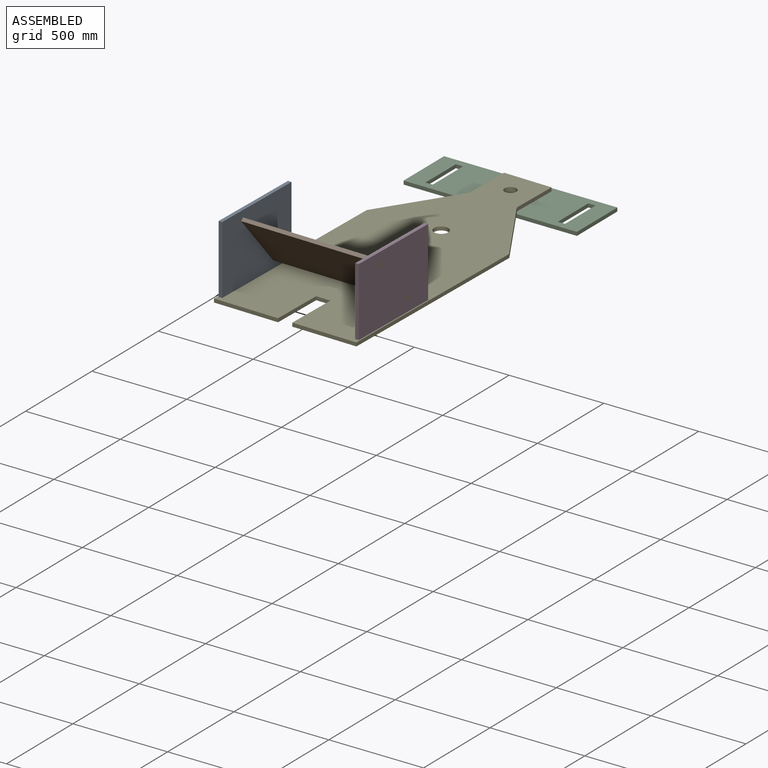
[diagram: assembled view]
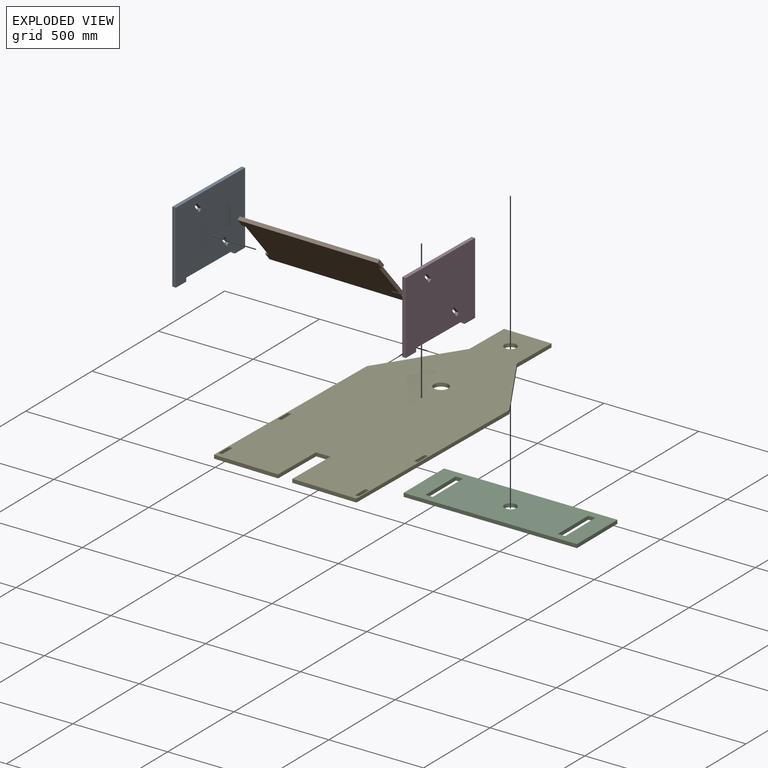
[diagram: exploded view]
GUIDED TOUR — MATED ASSEMBLY (Onshape document ca8d69a064440465adace408, AutoMate assembly ca8d69a064440465adace408_9f8851edc3aa5ce21e2790a8_0d32fe800d2b75ae77bd9095_default)

This assembly has 5 components, labeled P0..P4 below (a component is one placed occurrence of a part; the same part can appear more than once), held together by 4 mates. A mate is a constraint between two components; its type names the relative motion it leaves free:
  FASTENED — locks the two components together rigidly (no relative motion),
  REVOLUTE — leaves rotation about the listed axis free (a hinge).
Axis/direction vectors are unit vectors and 'through' points are millimeter coordinates, both in the assembly's world frame.

MATES
  1. FASTENED "Fastened 1": P3 <-> P4, direction (1.000, -0.020, 0.000) through (-311.57, -1307.19, -744.85) mm
  2. REVOLUTE "Revolute 1": P2 <-> P4, axis (0.000, 0.000, 1.000) through (-664.42, -182.40, -744.86) mm
  3. FASTENED "Fastened 3": P1 <-> P3, direction (-0.015, -0.761, -0.649) through (-318.87, -1676.63, -411.55) mm
  4. FASTENED "Fastened 2": P0 <-> P4, direction (-1.000, 0.020, 0.000) through (-1060.72, -1292.40, -744.88) mm

ASSEMBLY ORDER
  1. P1 — the base component [order verified]
  2. P0 [order verified]
  3. P3 [order verified]
  4. P4 [order verified]
  5. P2 [order verified]
Order-tag legend:
  [order verified] — this step's position reverses a verified removal order: the component was checked to insert without passing through the ones already placed.

Of the 5 components, 5 carry the full construction recipe — the FeatureScript program that regenerates the part's solid from scratch; the rest are supplied as boundary geometry only.
Each toured component is shown spotlighted twice — in the assembled view, then in the exploded view, where a leader line traces a displaced component back to its assembled socket (saturated green if recipe-attached, orange if geometry-only; every other component desaturated gray) — followed by its recipe or geometry summary and the mates that hold it.
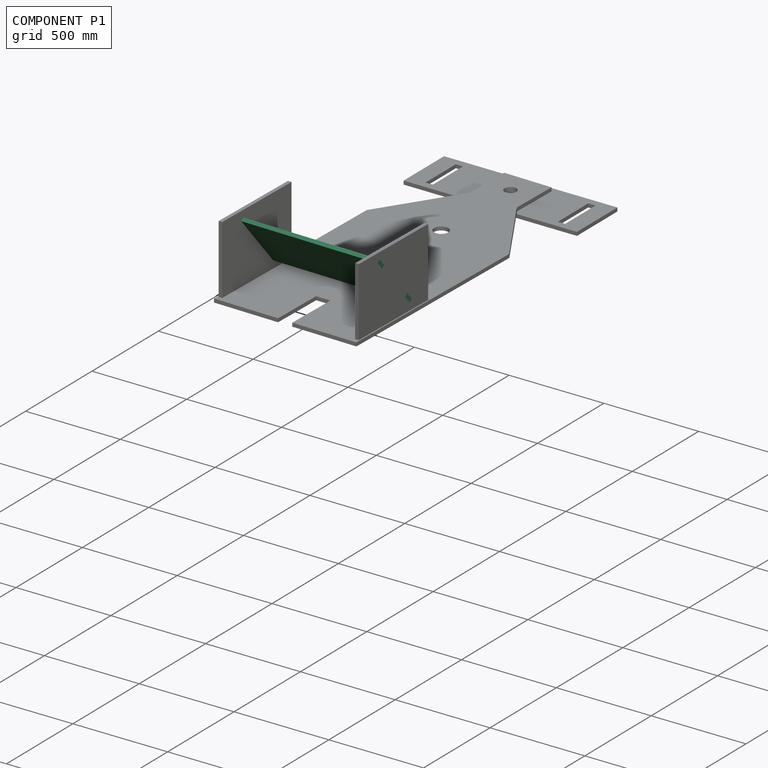
[diagram: component P1 — assembled]
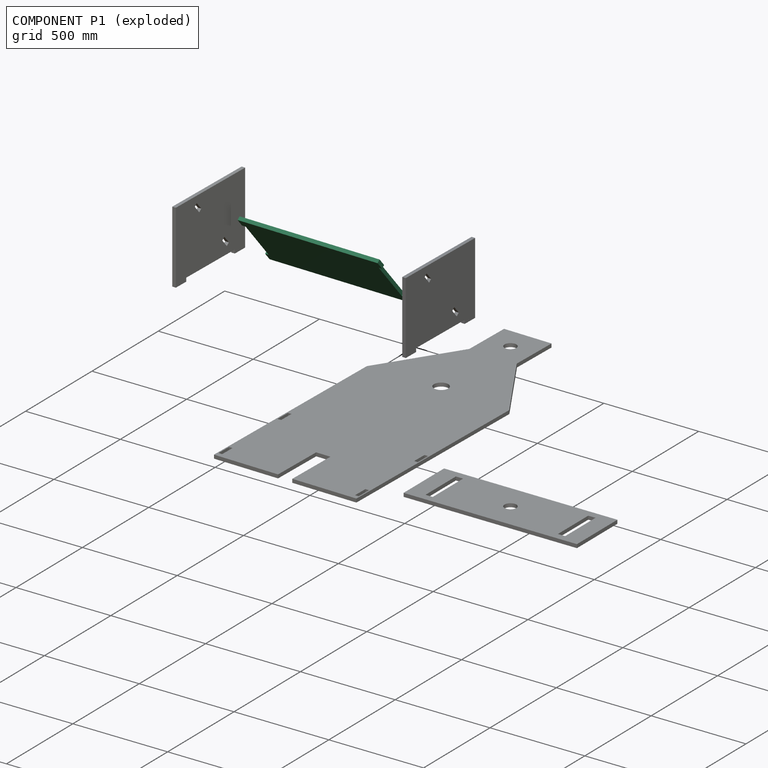
[diagram: component P1 — exploded]
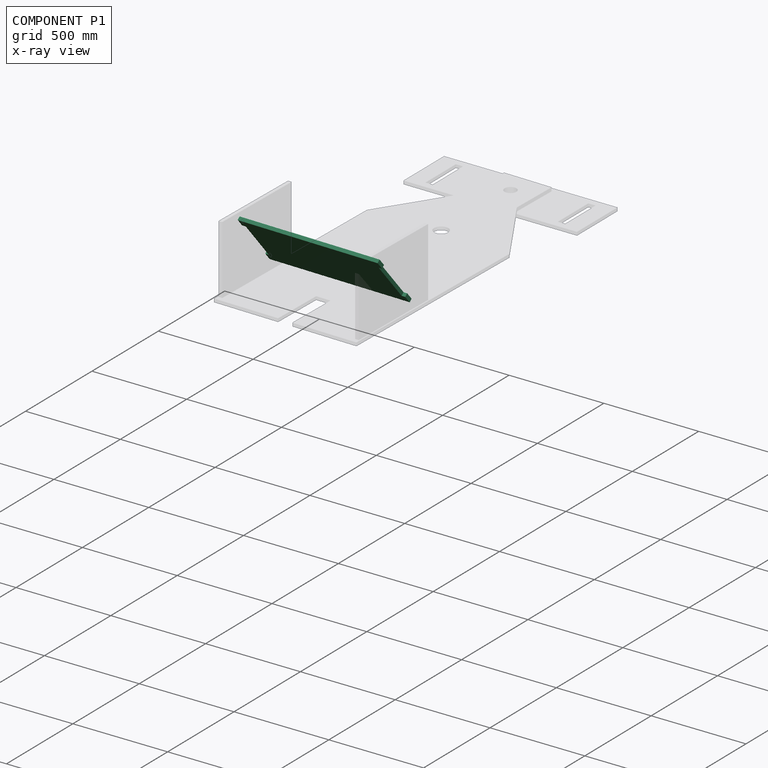
[diagram: component P1 — x-ray view]
COMPONENT P1 — recipe-attached (CADFS 00489166, mesh-verified: the recipe's output STEP matches this component's geometry to below the mesh-comparison resolution (tessellation chordal tolerance ~1.25 mm)).
Held by: FASTENED mate "Fastened 3" to P3.
Construction recipe (FeatureScript — the CAD program that rebuilds this solid; sketch coordinates are in the units given by the * unit suffixes, e.g. mm):

FeatureScript 1511;
import(path : "onshape/std/geometry.fs", version : "1511.0");
import(path : "onshape/std/common.fs", version : "1511.0");
const mm = millimeter;
const VERTEX = EntityType.VERTEX;
const EDGE = EntityType.EDGE;
const FACE = EntityType.FACE;
const BODY = EntityType.BODY;
function v(x, y){return vector(x, y);}
function OD(order){return orderDisambiguation(order);}
function OSD(set){return originalSetDisambiguation(set);}
function TD(topology){return topologyDisambiguation(topology);}
function TDD(query){return trueDependencyDisambiguation(query);}
function sQuery(a, b, c) {return sketchEntityQuery(a, b, c);}

annotation { "Feature Type Name" : "Feature", "Feature Type Description" : "" }
export const myFeature = defineFeature(function(context is Context, id is Id, definition is map)
    precondition{}
    {
        {
            var Q0;
            Q0=qCreatedBy(makeId("Front.planeOp"),FACE);
            var sketch = newSketch(context, id + "F0", { "sketchPlane" : qUnion([Q0])});
            skLineSegment(sketch, "E0", {"start": v(-749.3, 321.53) * mm, "end": v(-749.3, 270.73) * mm});
            skLineSegment(sketch, "E1", {"start": v(-749.3, 270.73) * mm, "end": v(-730.25, 270.73) * mm});
            skLineSegment(sketch, "E2", {"start": v(-730.25, 270.73) * mm, "end": v(-730.25, 10.38) * mm});
            skLineSegment(sketch, "E3", {"start": v(-730.25, 10.38) * mm, "end": v(-749.3, 10.38) * mm});
            skLineSegment(sketch, "E4", {"start": v(-749.3, 10.38) * mm, "end": v(-749.3, -40.42) * mm});
            skLineSegment(sketch, "E5", {"start": v(-749.3, -40.42) * mm, "end": v(0, -40.42) * mm});
            skLineSegment(sketch, "E6", {"start": v(-749.3, 321.53) * mm, "end": v(0, 321.53) * mm});
            skLineSegment(sketch, "E7", {"start": v(-19.05, 270.73) * mm, "end": v(-19.05, 10.38) * mm});
            skLineSegment(sketch, "E8", {"start": v(-19.05, 10.38) * mm, "end": v(0, 10.38) * mm});
            skLineSegment(sketch, "E9", {"start": v(0, 10.38) * mm, "end": v(0, -40.42) * mm});
            skLineSegment(sketch, "E10", {"start": v(-19.05, 270.73) * mm, "end": v(0, 270.73) * mm});
            skLineSegment(sketch, "E11", {"start": v(0, 270.73) * mm, "end": v(0, 321.53) * mm});
            skSolve(sketch);
        }
        {
            var Q0;
            Q0=makeQuery(id+"F0.imprint","IMPRINT",FACE,{"disambiguationData":[TD([[makeQuery(id+"F0.imprint","IMPRINT",EDGE,{"derivedFrom":sQuery(id+"F0.wireOp",EDGE,"E0")}),1.0]])]});
            extrude(context, id + "F1", {"entities" : qUnion([Q0]), "depth" : 19.05 * mm});
        }
    });
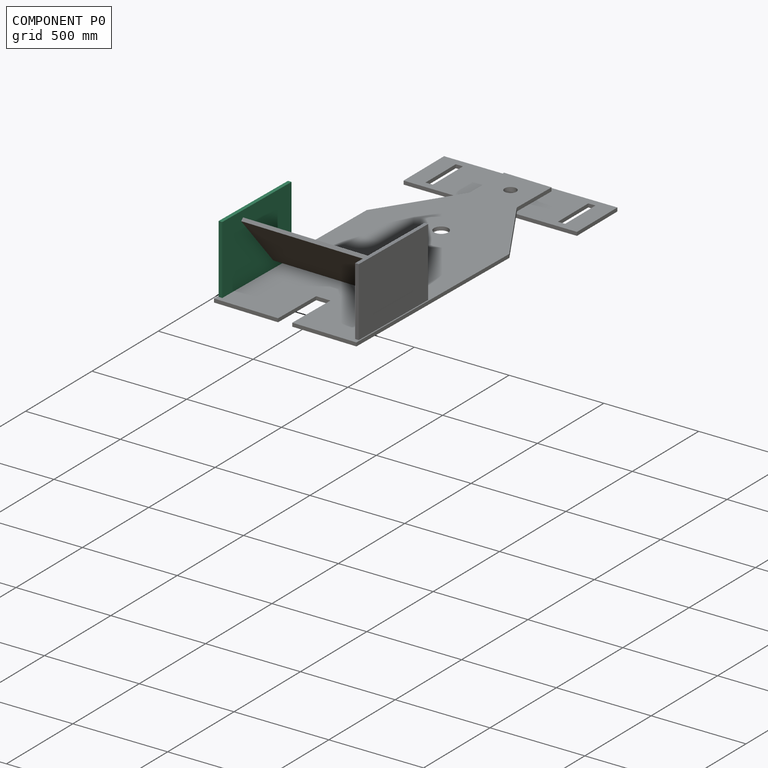
[diagram: component P0 — assembled]
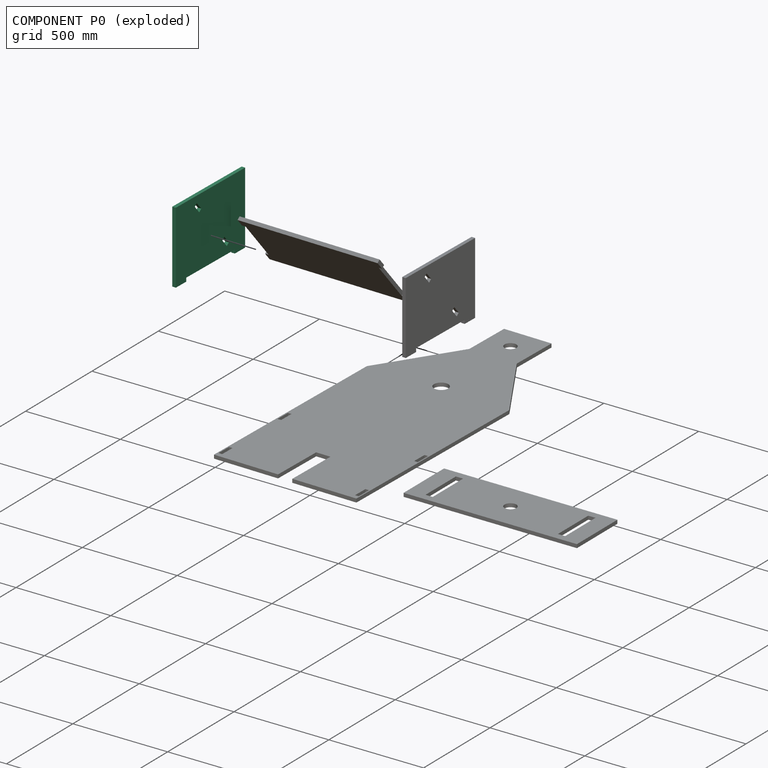
[diagram: component P0 — exploded]
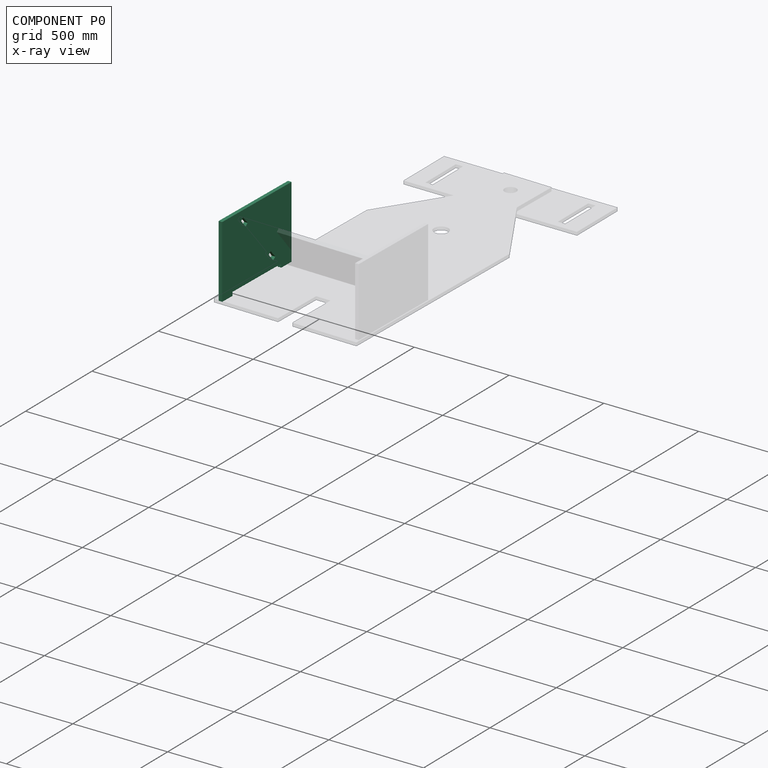
[diagram: component P0 — x-ray view]
COMPONENT P0 — recipe-attached (CADFS 00489168, mesh-verified: the recipe's output STEP matches this component's geometry to below the mesh-comparison resolution (tessellation chordal tolerance ~0.953 mm)).
Held by: FASTENED mate "Fastened 2" to P4.
Construction recipe (FeatureScript — the CAD program that rebuilds this solid; sketch coordinates are in the units given by the * unit suffixes, e.g. mm):

FeatureScript 1511;
import(path : "onshape/std/geometry.fs", version : "1511.0");
import(path : "onshape/std/common.fs", version : "1511.0");
const mm = millimeter;
const VERTEX = EntityType.VERTEX;
const EDGE = EntityType.EDGE;
const FACE = EntityType.FACE;
const BODY = EntityType.BODY;
function v(x, y){return vector(x, y);}
function OD(order){return orderDisambiguation(order);}
function OSD(set){return originalSetDisambiguation(set);}
function TD(topology){return topologyDisambiguation(topology);}
function TDD(query){return trueDependencyDisambiguation(query);}
function sQuery(a, b, c) {return sketchEntityQuery(a, b, c);}

annotation { "Feature Type Name" : "Feature", "Feature Type Description" : "" }
export const myFeature = defineFeature(function(context is Context, id is Id, definition is map)
    precondition{}
    {
        {
            var Q0;
            Q0=qCreatedBy(makeId("Front.planeOp"),FACE);
            var sketch = newSketch(context, id + "F0", { "sketchPlane" : qUnion([Q0])});
            skLineSegment(sketch, "E0.bottom", {"start": v(-227.7, 261.14) * mm, "end": v(280.3, 261.14) * mm});
            skLineSegment(sketch, "E0.top", {"start": v(-227.7, -100.8) * mm, "end": v(280.3, -100.8) * mm});
            skLineSegment(sketch, "E0.left", {"start": v(-227.7, 261.14) * mm, "end": v(-227.7, -100.8) * mm});
            skLineSegment(sketch, "E0.right", {"start": v(280.3, 261.14) * mm, "end": v(280.3, -100.8) * mm});
            skLineSegment(sketch, "E1.bottom", {"start": v(-227.7, -100.8) * mm, "end": v(-151.5, -100.8) * mm});
            skLineSegment(sketch, "E1.top", {"start": v(-227.7, -119.86) * mm, "end": v(-151.5, -119.86) * mm});
            skLineSegment(sketch, "E1.left", {"start": v(-227.7, -100.8) * mm, "end": v(-227.7, -119.86) * mm});
            skLineSegment(sketch, "E1.right", {"start": v(-151.5, -100.8) * mm, "end": v(-151.5, -119.86) * mm});
            skLineSegment(sketch, "E2.bottom", {"start": v(280.3, -100.8) * mm, "end": v(204.1, -100.8) * mm});
            skLineSegment(sketch, "E2.top", {"start": v(280.3, -119.86) * mm, "end": v(204.1, -119.86) * mm});
            skLineSegment(sketch, "E2.left", {"start": v(280.3, -100.8) * mm, "end": v(280.3, -119.86) * mm});
            skLineSegment(sketch, "E2.right", {"start": v(204.1, -100.8) * mm, "end": v(204.1, -119.86) * mm});
            skLineSegment(sketch, "E3", {"start": v(127.32, 225.8) * mm, "end": v(141.81, 213.45) * mm});
            skLineSegment(sketch, "E4", {"start": v(141.81, 213.45) * mm, "end": v(108.85, 174.8) * mm});
            skLineSegment(sketch, "E5", {"start": v(108.85, 174.8) * mm, "end": v(94.35, 187.16) * mm});
            skLineSegment(sketch, "E6", {"start": v(94.35, 187.16) * mm, "end": v(127.32, 225.8) * mm});
            skLineSegment(sketch, "E7", {"start": v(-60.19, -23.38) * mm, "end": v(-93.15, -62.03) * mm});
            skLineSegment(sketch, "E8", {"start": v(-74.68, -11.02) * mm, "end": v(-107.65, -49.67) * mm});
            skLineSegment(sketch, "E9", {"start": v(-60.19, -23.38) * mm, "end": v(-74.68, -11.02) * mm});
            skLineSegment(sketch, "E10", {"start": v(-107.65, -49.67) * mm, "end": v(-93.15, -62.03) * mm});
            skSolve(sketch);
        }
        {
            var Q0;
            Q0 = qSketchRegion(id + "F0", true);
            extrude(context, id + "F1", {"entities" : qUnion([Q0]), "depth" : 19.05 * mm});
        }
    });
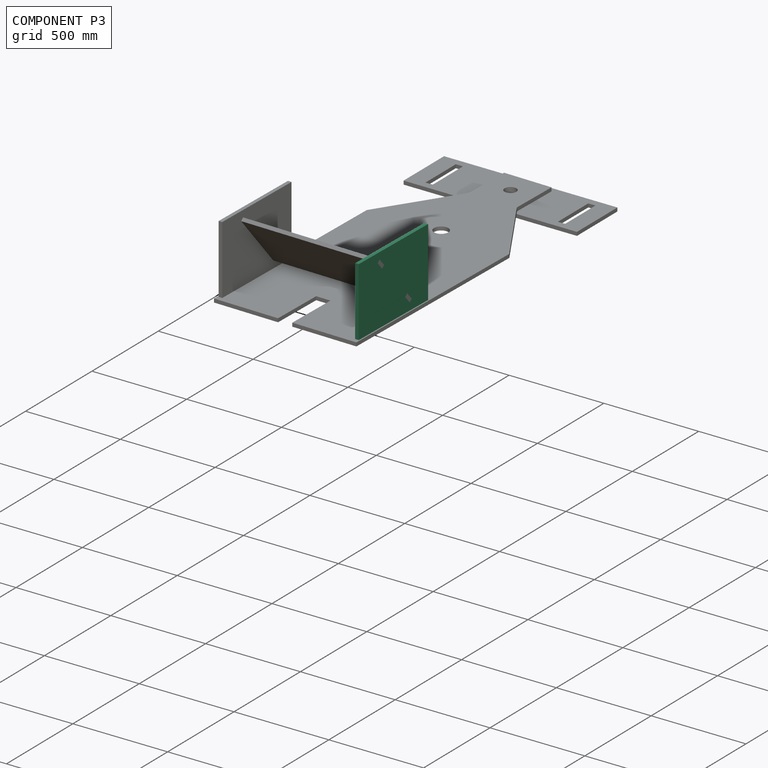
[diagram: component P3 — assembled]
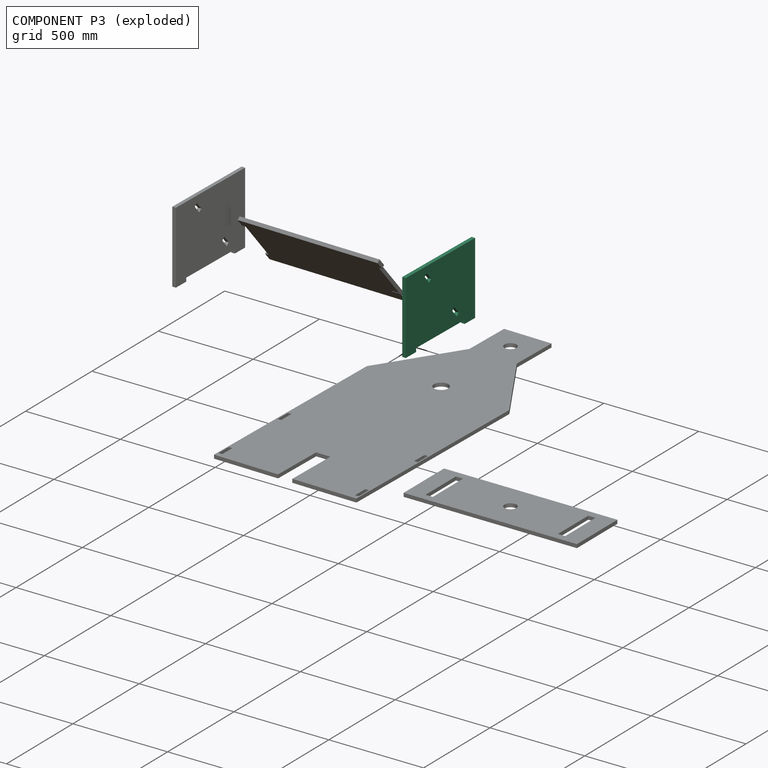
[diagram: component P3 — exploded]
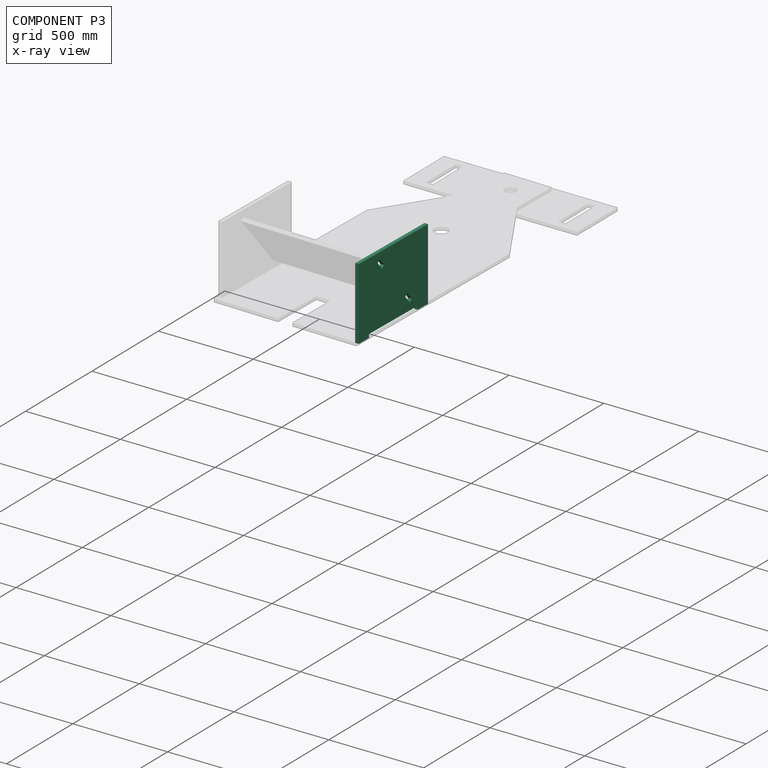
[diagram: component P3 — x-ray view]
COMPONENT P3 — same part as P0 (CADFS 00489168); its construction recipe is shown at P0.
Held by: FASTENED mate "Fastened 1" to P4; FASTENED mate "Fastened 3" to P1.
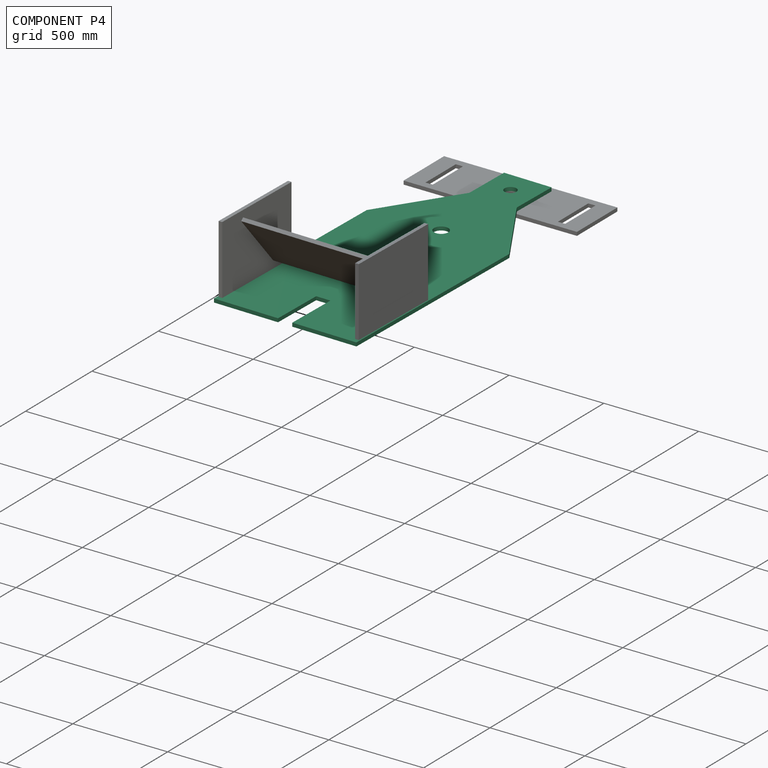
[diagram: component P4 — assembled]
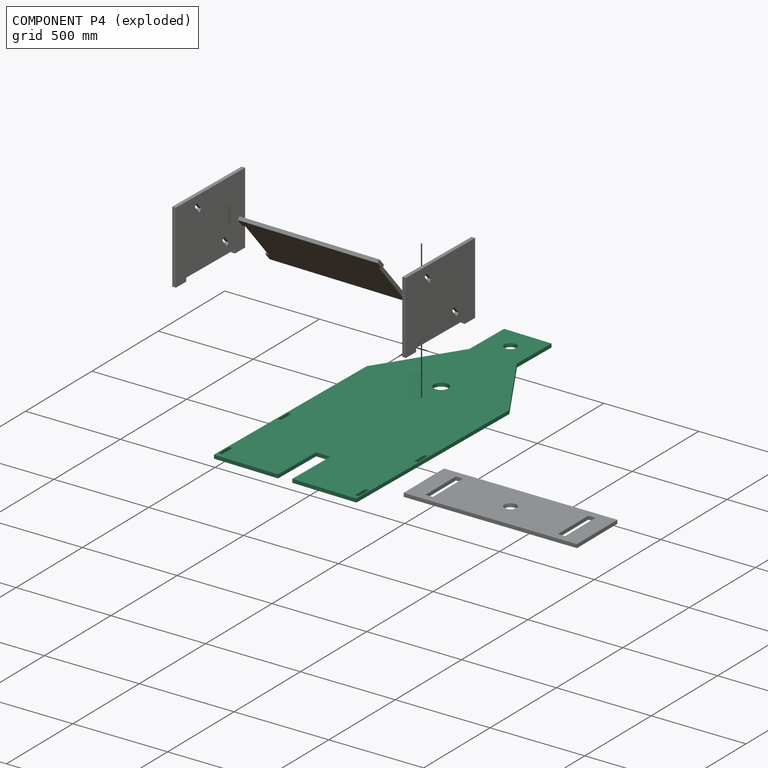
[diagram: component P4 — exploded]
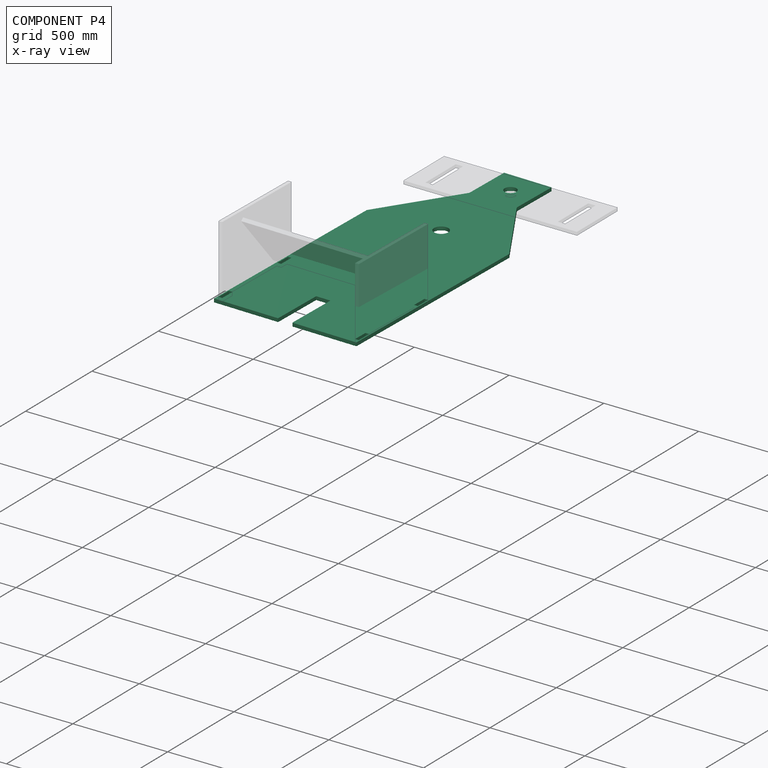
[diagram: component P4 — x-ray view]
COMPONENT P4 — recipe-attached (CADFS 00489165, mesh-verified: the recipe's output STEP matches this component's geometry to below the mesh-comparison resolution (tessellation chordal tolerance ~2.9 mm)).
Held by: FASTENED mate "Fastened 1" to P3; REVOLUTE mate "Revolute 1" to P2; FASTENED mate "Fastened 2" to P0.
Construction recipe (FeatureScript — the CAD program that rebuilds this solid; sketch coordinates are in the units given by the * unit suffixes, e.g. mm):

FeatureScript 1511;
import(path : "onshape/std/geometry.fs", version : "1511.0");
import(path : "onshape/std/common.fs", version : "1511.0");
const mm = millimeter;
const VERTEX = EntityType.VERTEX;
const EDGE = EntityType.EDGE;
const FACE = EntityType.FACE;
const BODY = EntityType.BODY;
function v(x, y){return vector(x, y);}
function OD(order){return orderDisambiguation(order);}
function OSD(set){return originalSetDisambiguation(set);}
function TD(topology){return topologyDisambiguation(topology);}
function TDD(query){return trueDependencyDisambiguation(query);}
function sQuery(a, b, c) {return sketchEntityQuery(a, b, c);}

annotation { "Feature Type Name" : "Feature", "Feature Type Description" : "" }
export const myFeature = defineFeature(function(context is Context, id is Id, definition is map)
    precondition{}
    {
        {
            var Q0;
            Q0=qCreatedBy(makeId("Top.planeOp"),FACE);
            var sketch = newSketch(context, id + "F0", { "sketchPlane" : qUnion([Q0])});
            skLineSegment(sketch, "E0.left", {"start": v(-844.69, -808.38) * mm, "end": v(-844.69, -833.78) * mm});
            skLineSegment(sketch, "E0.right", {"start": v(-82.69, 286.4) * mm, "end": v(-82.69, -833.78) * mm});
            skLineSegment(sketch, "E1.top", {"start": v(-336.69, 944.22) * mm, "end": v(-590.69, 944.22) * mm});
            skLineSegment(sketch, "E1.left", {"start": v(-336.69, 690.22) * mm, "end": v(-336.69, 944.22) * mm});
            skLineSegment(sketch, "E1.right", {"start": v(-590.69, 690.22) * mm, "end": v(-590.69, 944.22) * mm});
            skLineSegment(sketch, "E2.bottom", {"start": v(-838, -300.38) * mm, "end": v(-819.29, -300.38) * mm});
            skLineSegment(sketch, "E2.top", {"start": v(-838, -376.58) * mm, "end": v(-819.29, -376.58) * mm});
            skLineSegment(sketch, "E2.left", {"start": v(-819.29, -300.38) * mm, "end": v(-819.29, -376.58) * mm});
            skLineSegment(sketch, "E2.right", {"start": v(-838, -300.38) * mm, "end": v(-838, -376.58) * mm});
            skLineSegment(sketch, "E3.left", {"start": v(-838.34, -732.18) * mm, "end": v(-838.34, -808.38) * mm});
            skLineSegment(sketch, "E4.bottom", {"start": v(-838.34, -732.18) * mm, "end": v(-819.29, -732.18) * mm});
            skLineSegment(sketch, "E4.top", {"start": v(-838.34, -808.38) * mm, "end": v(-819.29, -808.38) * mm});
            skLineSegment(sketch, "E4.left", {"start": v(-819.29, -732.18) * mm, "end": v(-819.29, -808.38) * mm});
            skLineSegment(sketch, "E5.bottom", {"start": v(-108.09, -732.18) * mm, "end": v(-89.04, -732.18) * mm});
            skLineSegment(sketch, "E5.top", {"start": v(-108.09, -808.38) * mm, "end": v(-89.04, -808.38) * mm});
            skLineSegment(sketch, "E5.left", {"start": v(-89.04, -732.18) * mm, "end": v(-89.04, -808.38) * mm});
            skLineSegment(sketch, "E5.right", {"start": v(-108.09, -732.18) * mm, "end": v(-108.09, -808.38) * mm});
            skLineSegment(sketch, "E6.left", {"start": v(-88.7, -744.02) * mm, "end": v(-89.04, -808.38) * mm});
            skLineSegment(sketch, "E6.right", {"start": v(-107.75, -744.02) * mm, "end": v(-108.09, -808.38) * mm});
            skLineSegment(sketch, "E7.right", {"start": v(-88.7, -300.38) * mm, "end": v(-88.7, -376.58) * mm});
            skLineSegment(sketch, "E8.bottom", {"start": v(-107.75, -300.38) * mm, "end": v(-88.7, -300.38) * mm});
            skLineSegment(sketch, "E8.top", {"start": v(-107.75, -376.58) * mm, "end": v(-88.7, -376.58) * mm});
            skLineSegment(sketch, "E8.right", {"start": v(-107.75, -300.38) * mm, "end": v(-107.75, -376.58) * mm});
            skCircle(sketch, "E9", {"center": v(-463.69, 817.22) * mm, "radius": 31.3 * mm});
            skPoint(sketch, "E9.centerSnap0", {"position": v(-463.69, 944.22) * mm});
            skPoint(sketch, "E9.centerSnap1", {"position": v(-590.69, 817.22) * mm});
            skCircle(sketch, "E10", {"center": v(-463.69, 309.22) * mm, "radius": 38.1 * mm});
            skPoint(sketch, "E11.oppositeSnap0", {"position": v(-463.69, -833.78) * mm});
            skLineSegment(sketch, "E12", {"start": v(-107.75, -376.58) * mm, "end": v(-82.69, -376.58) * mm, "construction": true});
            skLineSegment(sketch, "E13", {"start": v(-82.69, -376.58) * mm, "end": v(-107.75, -376.58) * mm, "construction": true});
            skLineSegment(sketch, "E14", {"start": v(-108.09, -877.3) * mm, "end": v(-82.69, -877.3) * mm, "construction": true});
            skLineSegment(sketch, "E15", {"start": v(-838.34, -732.18) * mm, "end": v(-838, -376.58) * mm, "construction": true});
            skLineSegment(sketch, "E16", {"start": v(-819.29, -808.38) * mm, "end": v(-844.69, -808.38) * mm, "construction": true});
            skLineSegment(sketch, "E17", {"start": v(-844.69, -808.38) * mm, "end": v(-844.69, -376.58) * mm, "construction": true});
            skLineSegment(sketch, "E18", {"start": v(-844.69, -376.58) * mm, "end": v(-819.29, -376.58) * mm, "construction": true});
            skLineSegment(sketch, "E19", {"start": v(-336.69, 841.98) * mm, "end": v(-590.69, 841.98) * mm, "construction": true});
            skLineSegment(sketch, "E20", {"start": v(-82.69, -833.78) * mm, "end": v(-425.59, -833.78) * mm});
            skLineSegment(sketch, "E21.bottom", {"start": v(-501.79, -554.38) * mm, "end": v(-425.59, -554.38) * mm, "construction": true});
            skLineSegment(sketch, "E21.left", {"start": v(-501.79, -554.38) * mm, "end": v(-501.79, -833.78) * mm, "construction": true});
            skLineSegment(sketch, "E21.right", {"start": v(-425.59, -554.38) * mm, "end": v(-425.59, -833.78) * mm, "construction": true});
            skLineSegment(sketch, "E22", {"start": v(-425.59, -833.78) * mm, "end": v(-425.59, -554.38) * mm});
            skLineSegment(sketch, "E23", {"start": v(-501.79, -554.38) * mm, "end": v(-501.79, -833.78) * mm});
            skLineSegment(sketch, "E24.trimOffspring", {"start": v(-501.79, -833.78) * mm, "end": v(-844.69, -833.78) * mm});
            skPoint(sketch, "E21.top.start.orphan", {"position": v(-501.79, -1113.18) * mm});
            skPoint(sketch, "E25.orphan", {"position": v(-425.59, -1113.18) * mm});
            skLineSegment(sketch, "E26", {"start": v(-425.59, -554.38) * mm, "end": v(-501.79, -554.38) * mm});
            skLineSegment(sketch, "E27", {"start": v(-107.75, -376.58) * mm, "end": v(-108.09, -732.18) * mm, "construction": true});
            skLineSegment(sketch, "E28", {"start": v(-88.7, -300.38) * mm, "end": v(-838, -300.38) * mm, "construction": true});
            skLineSegment(sketch, "E29", {"start": v(-89.04, -732.18) * mm, "end": v(-88.7, -376.58) * mm, "construction": true});
            skLineSegment(sketch, "E30", {"start": v(-819.29, -732.18) * mm, "end": v(-819.29, -376.58) * mm, "construction": true});
            skLineSegment(sketch, "E31", {"start": v(-838.34, -808.38) * mm, "end": v(-89.04, -808.38) * mm, "construction": true});
            skLineSegment(sketch, "E32", {"start": v(-684.76, 0) * mm, "end": v(-684.76, -191.81) * mm, "construction": true});
            skLineSegment(sketch, "E33", {"start": v(-684.76, -191.81) * mm, "end": v(-291.79, -191.81) * mm, "construction": true});
            skLineSegment(sketch, "E34", {"start": v(-291.79, -191.81) * mm, "end": v(-291.79, 0) * mm, "construction": true});
            skLineSegment(sketch, "E35", {"start": v(-291.79, 0) * mm, "end": v(-684.76, 0) * mm, "construction": true});
            skLineSegment(sketch, "E36", {"start": v(-336.69, 690.22) * mm, "end": v(-82.69, 286.4) * mm});
            skLineSegment(sketch, "E37", {"start": v(-433.17, 286.4) * mm, "end": v(-494.2, 286.4) * mm});
            skLineSegment(sketch, "E38", {"start": v(-844.69, 286.4) * mm, "end": v(-590.69, 690.22) * mm});
            skLineSegment(sketch, "E39", {"start": v(-844.69, 286.4) * mm, "end": v(-838, -300.38) * mm});
            skLineSegment(sketch, "E40", {"start": v(-590.69, 944.22) * mm, "end": v(-590.69, 817.22) * mm});
            skLineSegment(sketch, "E41", {"start": v(-82.69, 286.4) * mm, "end": v(-326.2, 673.55) * mm});
            skLineSegment(sketch, "E42", {"start": v(-590.69, 944.22) * mm, "end": v(-590.69, 690.22) * mm});
            skLineSegment(sketch, "E43", {"start": v(-590.69, 944.22) * mm, "end": v(-336.69, 944.22) * mm});
            skLineSegment(sketch, "E44", {"start": v(-844.69, -833.78) * mm, "end": v(-844.69, 286.4) * mm});
            skLineSegment(sketch, "E45", {"start": v(-501.79, -542.3) * mm, "end": v(-425.59, -542.3) * mm});
            skLineSegment(sketch, "E46", {"start": v(-425.59, -542.3) * mm, "end": v(-425.59, -833.78) * mm});
            skLineSegment(sketch, "E47", {"start": v(-501.79, -833.78) * mm, "end": v(-425.59, -833.78) * mm});
            skSolve(sketch);
        }
        {
            var Q0;
            {var subQ5=sQuery(id+"F0.wireOp",EDGE,"E0.right");Q0=makeQuery(id+"F0.imprint","IMPRINT",FACE,{"disambiguationData":[TD([[makeQuery(id+"F0.imprint","IMPRINT",EDGE,{"derivedFrom":subQ5}),-1.0]])]});}
            var Q1;
            {var subQ2=sQuery(id+"F0.wireOp",EDGE,"E45");Q1=makeQuery(id+"F0.imprint","IMPRINT",FACE,{"disambiguationData":[TD([[makeQuery(id+"F0.imprint","IMPRINT",EDGE,{"derivedFrom":subQ2}),-1.0]])]});}
            extrude(context, id + "F1", {"entities" : qUnion([Q0, Q1]), "depth" : 19.05 * mm, "offsetDistance" : 25.4 * mm});
        }
    });
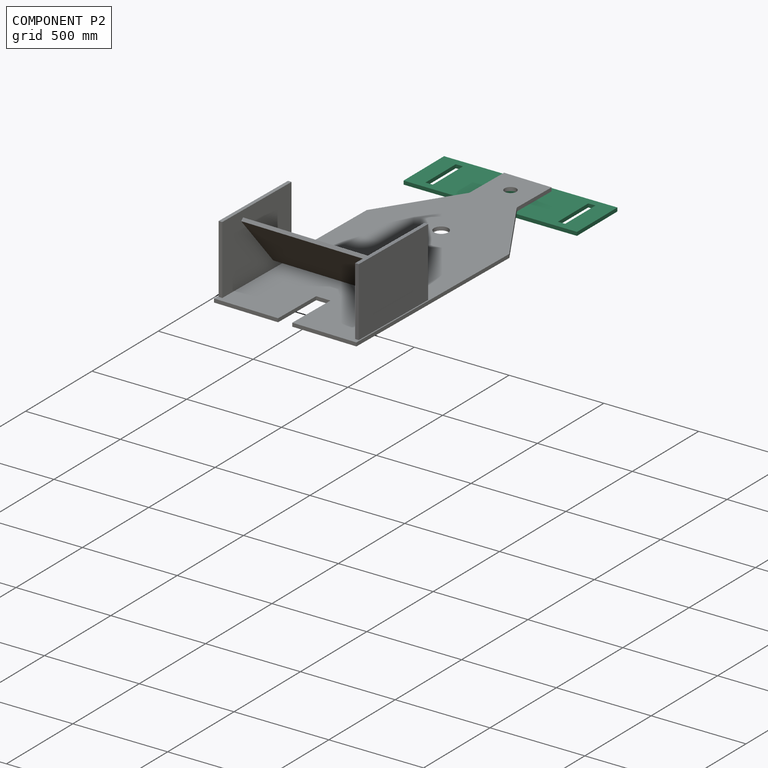
[diagram: component P2 — assembled]
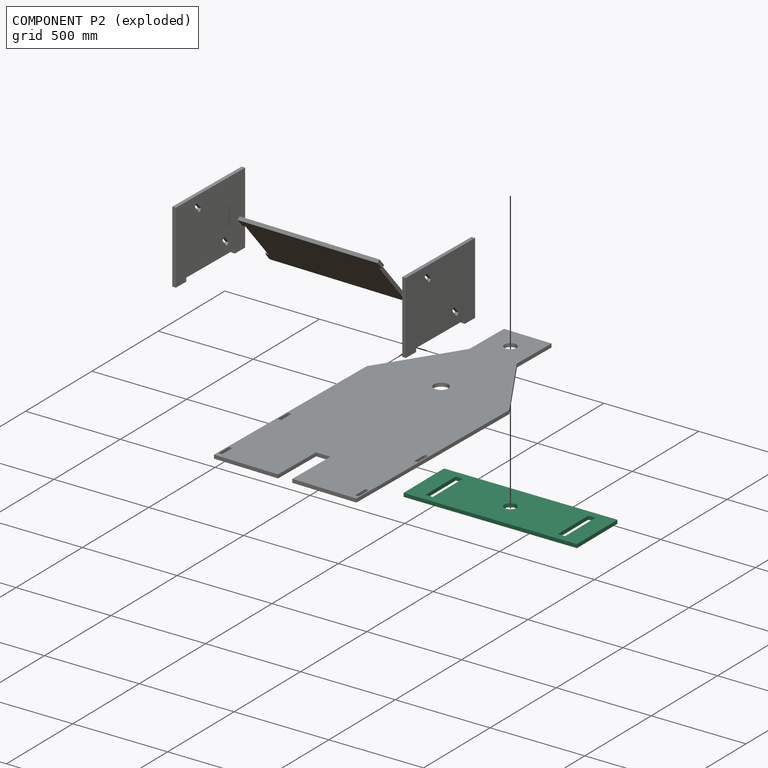
[diagram: component P2 — exploded]
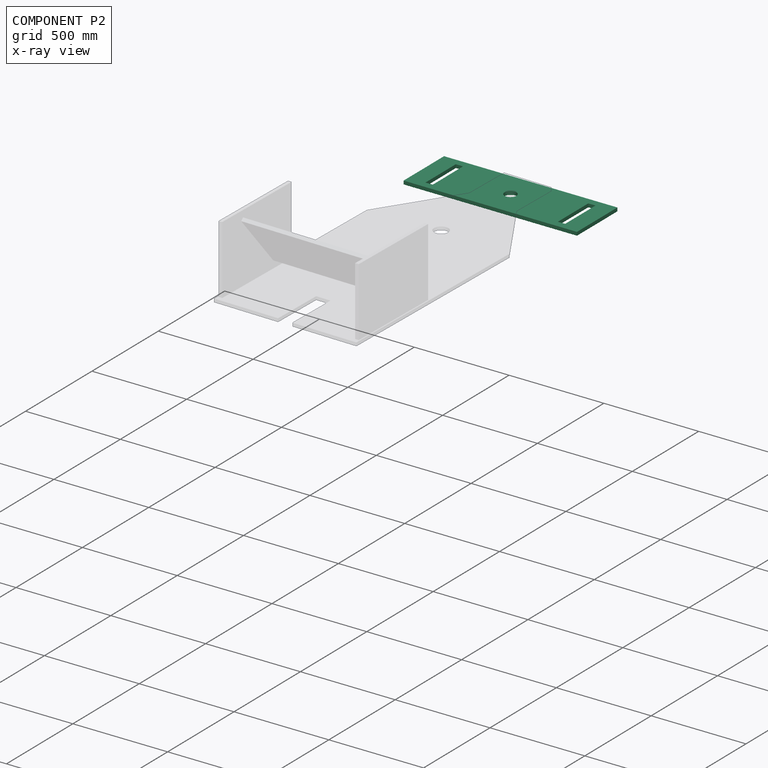
[diagram: component P2 — x-ray view]
COMPONENT P2 — recipe-attached (CADFS 00489167, mesh-verified: the recipe's output STEP matches this component's geometry to below the mesh-comparison resolution (tessellation chordal tolerance ~1.45 mm)).
Held by: REVOLUTE mate "Revolute 1" to P4.
Construction recipe (FeatureScript — the CAD program that rebuilds this solid; sketch coordinates are in the units given by the * unit suffixes, e.g. mm):

FeatureScript 1511;
import(path : "onshape/std/geometry.fs", version : "1511.0");
import(path : "onshape/std/common.fs", version : "1511.0");
const mm = millimeter;
const VERTEX = EntityType.VERTEX;
const EDGE = EntityType.EDGE;
const FACE = EntityType.FACE;
const BODY = EntityType.BODY;
function v(x, y){return vector(x, y);}
function OD(order){return orderDisambiguation(order);}
function OSD(set){return originalSetDisambiguation(set);}
function TD(topology){return topologyDisambiguation(topology);}
function TDD(query){return trueDependencyDisambiguation(query);}
function sQuery(a, b, c) {return sketchEntityQuery(a, b, c);}

annotation { "Feature Type Name" : "Feature", "Feature Type Description" : "" }
export const myFeature = defineFeature(function(context is Context, id is Id, definition is map)
    precondition{}
    {
        {
            var Q0;
            Q0=qCreatedBy(makeId("Top.planeOp"),FACE);
            var sketch = newSketch(context, id + "F0", { "sketchPlane" : qUnion([Q0])});
            skLineSegment(sketch, "E0.bottom", {"start": v(-464.88, 38.1) * mm, "end": v(449.52, 38.1) * mm});
            skLineSegment(sketch, "E0.top", {"start": v(-464.88, -266.7) * mm, "end": v(449.52, -266.7) * mm});
            skLineSegment(sketch, "E0.left", {"start": v(-464.88, 38.1) * mm, "end": v(-464.88, -266.7) * mm});
            skLineSegment(sketch, "E0.right", {"start": v(449.52, 38.1) * mm, "end": v(449.52, -266.7) * mm});
            skPoint(sketch, "E1.centerSnap0", {"position": v(-7.68, 38.1) * mm});
            skCircle(sketch, "E2", {"center": v(-7.68, -114.3) * mm, "radius": 31.3 * mm});
            skPoint(sketch, "E2.centerSnap0", {"position": v(-464.88, -114.3) * mm});
            skLineSegment(sketch, "E3.bottom", {"start": v(-375.98, 0) * mm, "end": v(-337.88, 0) * mm});
            skLineSegment(sketch, "E3.top", {"start": v(-375.98, -228.6) * mm, "end": v(-337.88, -228.6) * mm});
            skLineSegment(sketch, "E3.left", {"start": v(-375.98, 0) * mm, "end": v(-375.98, -228.6) * mm});
            skLineSegment(sketch, "E3.right", {"start": v(-337.88, 0) * mm, "end": v(-337.88, -228.6) * mm});
            skLineSegment(sketch, "E4.bottom", {"start": v(322.52, 0) * mm, "end": v(360.62, 0) * mm});
            skLineSegment(sketch, "E4.top", {"start": v(322.52, -228.6) * mm, "end": v(360.62, -228.6) * mm});
            skLineSegment(sketch, "E4.left", {"start": v(322.52, 0) * mm, "end": v(322.52, -228.6) * mm});
            skLineSegment(sketch, "E4.right", {"start": v(360.62, 0) * mm, "end": v(360.62, -228.6) * mm});
            skSolve(sketch);
        }
        {
            var Q0;
            Q0=makeQuery(id+"F0.imprint","IMPRINT",FACE,{"disambiguationData":[TD([[makeQuery(id+"F0.imprint","IMPRINT",EDGE,{"derivedFrom":sQuery(id+"F0.wireOp",EDGE,"E0.bottom")}),-1.0]])]});
            extrude(context, id + "F1", {"entities" : qUnion([Q0]), "depth" : 19.05 * mm, "offsetDistance" : 25.4 * mm});
        }
    });
PROVENANCE & LICENSES
Assembly (occurrences, transforms, mates, per-part STEP geometry): AutoMate dataset, Zenodo record 7776208, CC0.
Construction recipes: CADFS (HuggingFace VladPyatov/CADFS, CC-BY-4.0, layered over the ABC dataset), FeatureScript reconstruction programs keyed by ABC model id.
Join: ABC meta listings map ABC model id -> Onshape documentId; within a shared document, parts are matched by geometric signature (bounding-box dims + volume at 0.1% relative tolerance, exact B-rep face/solid counts).
Verification: 5 of this assembly's 5 components carry a recipe attachment, and every attachment is mesh-verified: the CADFS STEP and the AutoMate member STEP were compared as meshes in their shared local frame (symmetric sampled-point-to-mesh distance); worst across the 5 attachments: below the mesh-comparison resolution (tessellation chordal tolerance ~2.9 mm) on a 1935 mm part.
Renders: orthographic iso camera (az 35 / el 25); the floor grid conveys scale (grid pitch printed in each image; no ruler). In the exploded view each component is displaced by its stored offset vector: the offsets alone carry the explosion direction (mate normal/axis signs are not orientation cues and do not encode it), and separation distances are assigned per mate-chain, not proportionally to assembly-order depth.
